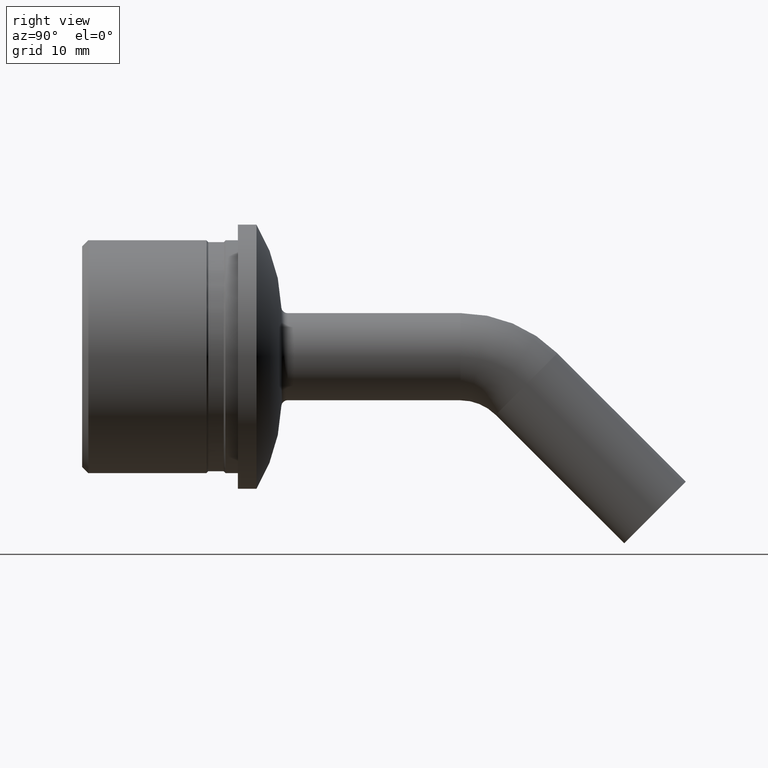
[diagram: clean part render]
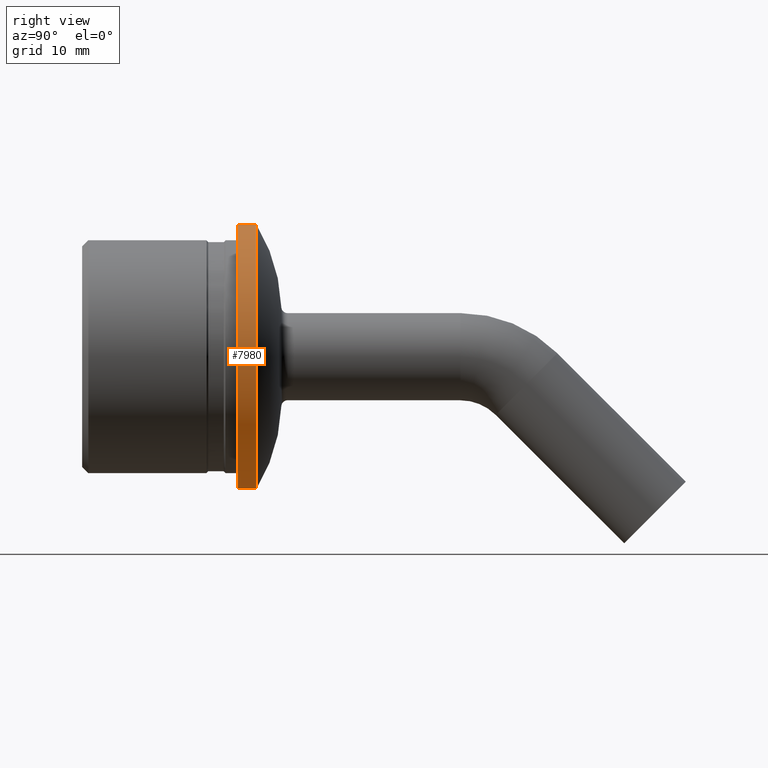
[diagram: same view with one face highlighted and labeled with its STEP entity id]
A machine part, right view. The second image highlights one B-rep face of the part: STEP entity #7980.
In plain terms, the highlighted cylindrical surface (partial cylindrical patch) has radius 21.2 mm, axis along (-0, 1, 0).
Its self-contained STEP definition (entity closure, byte-faithful):
#1117 = LINE ( 'NONE', #7355, #4708 ) ;
#2101 = CARTESIAN_POINT ( 'NONE',  ( 0.000000000000000000, -7.000000000000005329, 21.19999999999999929 ) ) ;
#2804 = CARTESIAN_POINT ( 'NONE',  ( 2.596251214192388770E-15, 2.596251214192388770E-15, -21.19999999999999929 ) ) ;
#2953 = CIRCLE ( 'NONE', #7347, 21.19999999999999929 ) ;
#3630 = VECTOR ( 'NONE', #14902, 1000.000000000000000 ) ;
#3703 = CYLINDRICAL_SURFACE ( 'NONE', #12027, 21.19999999999999929 ) ;
#4150 = ORIENTED_EDGE ( 'NONE', *, *, #11625, .T. ) ;
#4153 = VERTEX_POINT ( 'NONE', #12221 ) ;
#4262 = EDGE_CURVE ( 'NONE', #14782, #11321, #13490, .T. ) ;
#4708 = VECTOR ( 'NONE', #6015, 1000.000000000000000 ) ;
#4783 = EDGE_CURVE ( 'NONE', #12946, #14782, #1117, .T. ) ;
#4928 = CARTESIAN_POINT ( 'NONE',  ( 0.000000000000000000, -4.000000000000005329, 21.19999999999999929 ) ) ;
#6015 = DIRECTION ( 'NONE',  ( -0.000000000000000000, 1.000000000000000000, 1.224646799147353207E-16 ) ) ;
#6526 = DIRECTION ( 'NONE',  ( -0.000000000000000000, 1.000000000000000000, 1.224646799147353207E-16 ) ) ;
#6876 = LINE ( 'NONE', #2804, #3630 ) ;
#7006 = CARTESIAN_POINT ( 'NONE',  ( 0.000000000000000000, -7.000000000000002665, -8.572527594031475162E-16 ) ) ;
#7312 = AXIS2_PLACEMENT_3D ( 'NONE', #15694, #15746, #7382 ) ;
#7347 = AXIS2_PLACEMENT_3D ( 'NONE', #7006, #11858, #13064 ) ;
#7355 = CARTESIAN_POINT ( 'NONE',  ( 0.000000000000000000, -2.596251214192388770E-15, 21.19999999999999929 ) ) ;
#7382 = DIRECTION ( 'NONE',  ( 0.000000000000000000, -1.227398685832646557E-16, 1.000000000000000000 ) ) ;
#7647 = EDGE_CURVE ( 'NONE', #12946, #4153, #2953, .T. ) ;
#7980 = ADVANCED_FACE ( 'NONE', ( #8296 ), #3703, .T. ) ;
#8296 = FACE_OUTER_BOUND ( 'NONE', #13673, .T. ) ;
#8720 = ORIENTED_EDGE ( 'NONE', *, *, #4262, .F. ) ;
#11321 = VERTEX_POINT ( 'NONE', #15606 ) ;
#11625 = EDGE_CURVE ( 'NONE', #4153, #11321, #6876, .T. ) ;
#11776 = ORIENTED_EDGE ( 'NONE', *, *, #7647, .T. ) ;
#11858 = DIRECTION ( 'NONE',  ( -0.000000000000000000, 1.000000000000000000, 1.224646799147353207E-16 ) ) ;
#12027 = AXIS2_PLACEMENT_3D ( 'NONE', #15208, #6526, #15158 ) ;
#12096 = ORIENTED_EDGE ( 'NONE', *, *, #4783, .F. ) ;
#12221 = CARTESIAN_POINT ( 'NONE',  ( 2.596251214192388770E-15, -7.000000000000000000, -21.19999999999999929 ) ) ;
#12946 = VERTEX_POINT ( 'NONE', #2101 ) ;
#13064 = DIRECTION ( 'NONE',  ( 0.000000000000000000, -1.227398685832646557E-16, 1.000000000000000000 ) ) ;
#13490 = CIRCLE ( 'NONE', #7312, 21.19999999999999929 ) ;
#13673 = EDGE_LOOP ( 'NONE', ( #11776, #4150, #8720, #12096 ) ) ;
#14782 = VERTEX_POINT ( 'NONE', #4928 ) ;
#14902 = DIRECTION ( 'NONE',  ( -0.000000000000000000, 1.000000000000000000, 1.224646799147353207E-16 ) ) ;
#15158 = DIRECTION ( 'NONE',  ( 0.000000000000000000, -1.224646799147353207E-16, 1.000000000000000000 ) ) ;
#15208 = CARTESIAN_POINT ( 'NONE',  ( 0.000000000000000000, 0.000000000000000000, 0.000000000000000000 ) ) ;
#15606 = CARTESIAN_POINT ( 'NONE',  ( 2.596251214192388770E-15, -4.000000000000000000, -21.19999999999999929 ) ) ;
#15694 = CARTESIAN_POINT ( 'NONE',  ( 0.000000000000000000, -4.000000000000002665, -4.898587196589416773E-16 ) ) ;
#15746 = DIRECTION ( 'NONE',  ( -0.000000000000000000, 1.000000000000000000, 1.224646799147353207E-16 ) ) ;